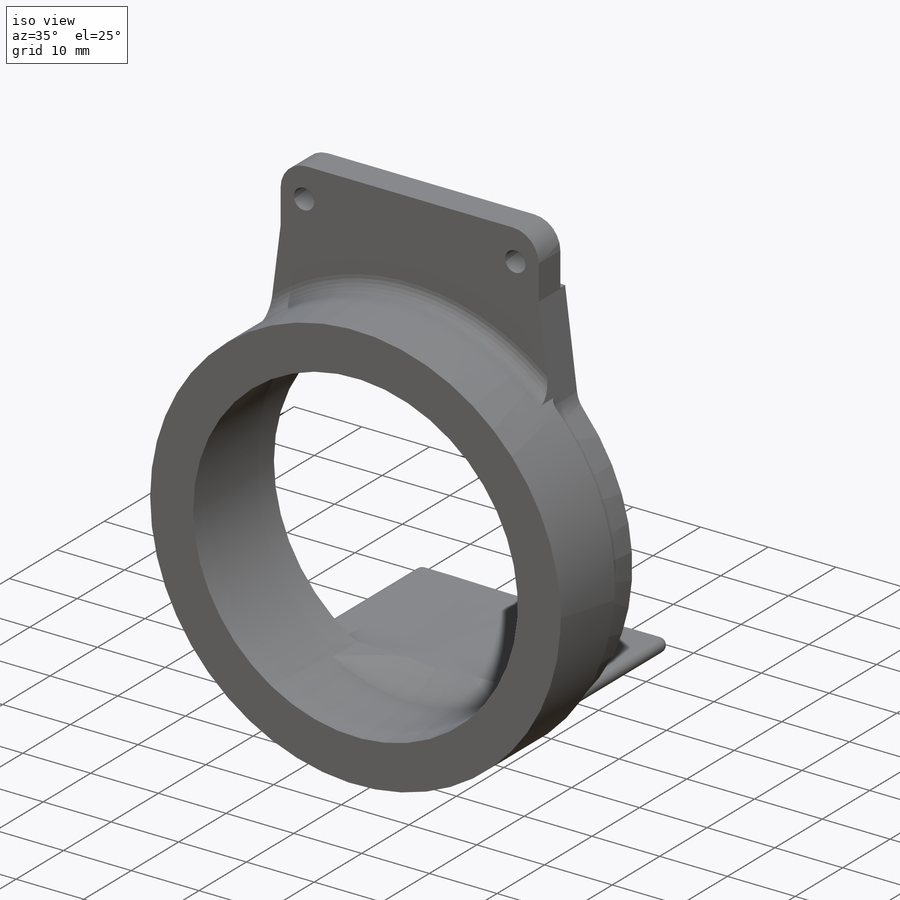
[diagram: iso view]
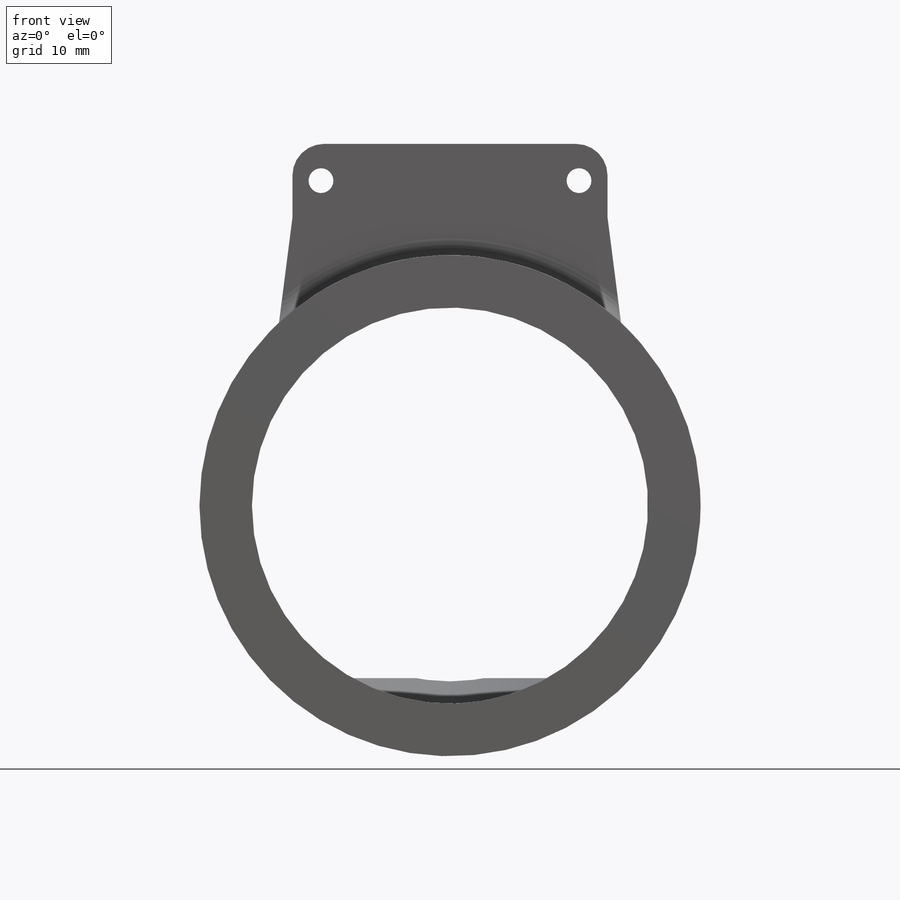
[diagram: front view]
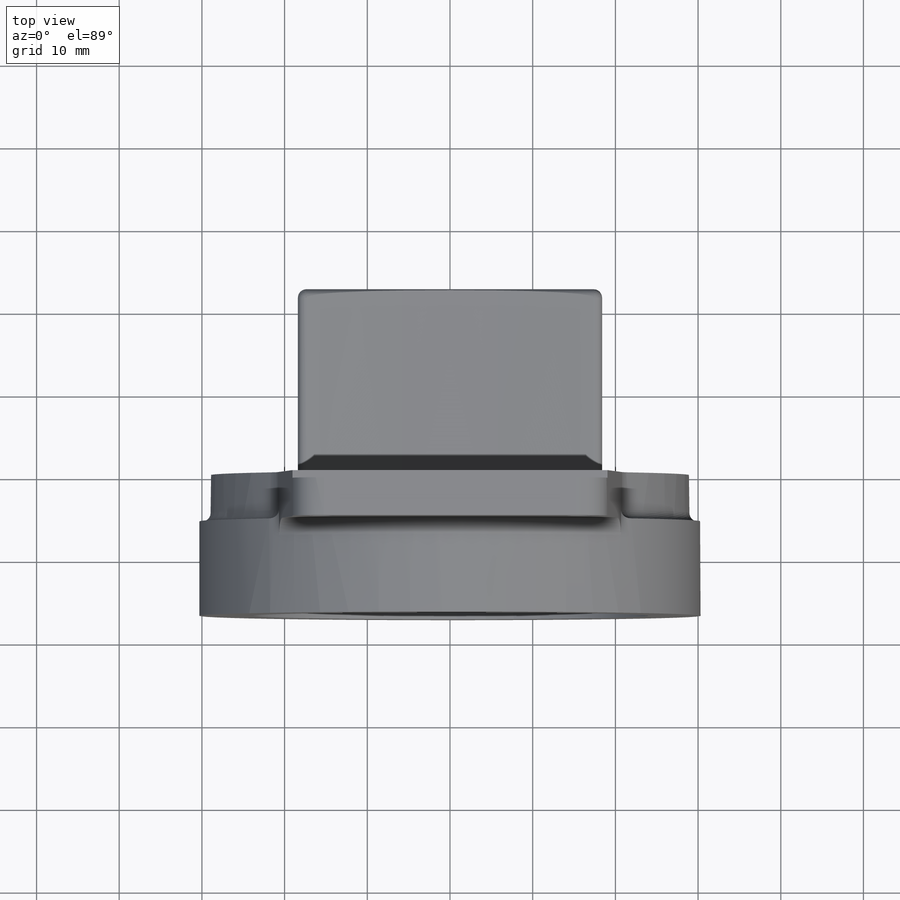
[diagram: top view]
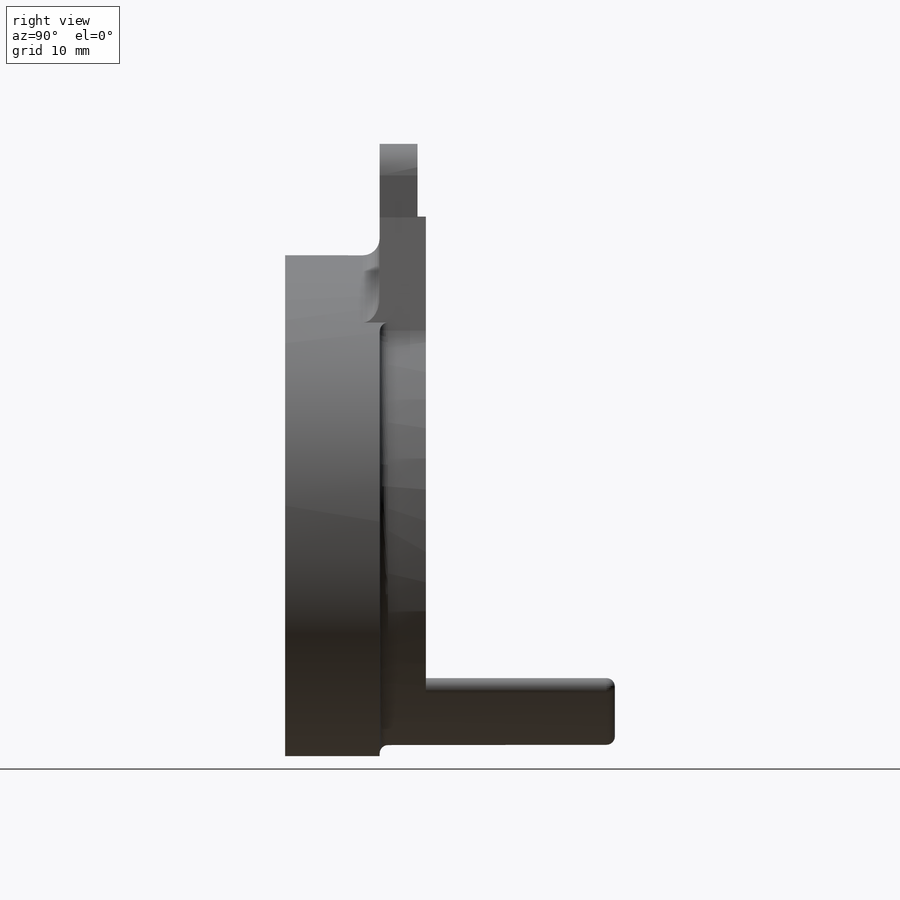
[diagram: right view]
SOLIDWORKS PART (.sldprt)
format: sldprt  version: not decoded by parser v0  size: 546,816 bytes
history: native  units: mm
features: sketch x5, fillet x4, extrude x3, cut_extrude x2, material x1, chamfer x1 (+13 scaffold rows collapsed)
feature tree (29):
  scaffold x13  (default folders/planes/origin — collapsed)
  material  "Material <not specified>"
  sketch  "Sketch1"  dims[c1.D1=47.9mm c1.D2=~64.883019mm c1.D4=3.0mm c2.D2=5.0mm c2.D3=15.6mm c2.D5=39.3mm c2.D6=38.1mm c2.D7=8.89mm c2.D8=41.91mm]
  extrude  "Boss-Extrude1"  Depth=5.588mm
  fillet  "Fillet1"  Radius=3.81mm
  sketch  "Sketch2"  dims[D1=6.35mm]
  extrude  "Boss-Extrude2"  Depth=11.43mm
  fillet  "Fillet2"  Radius=2.032mm
  sketch  "Sketch3"  dims[D1=~8.793075mm]
  cut_extrude  "Cut-Extrude1"  Depth=1.016mm
  fillet  "Fillet3"  Radius=1.016mm
  sketch  "Sketch4"  dims[D1=64.6mm]
  extrude  "Boss-Extrude3"  Depth=22.86mm
  fillet  "Fillet4"  Radius=1.016mm
  chamfer  "Chamfer1"  Distance=5.08mm Angle=28deg
  sketch  "Sketch5"  dims[D1=279.4mm]
  cut_extrude  "Cut-Extrude2"  [1 undecoded]
decode coverage: 14 of 15 modeling features carry decoded parameters
note: ~ marks probable driven/reference dimensions
note: 1 parameter value undecoded
note: suppression state not decoded; provenance and decode notes live in map.json
